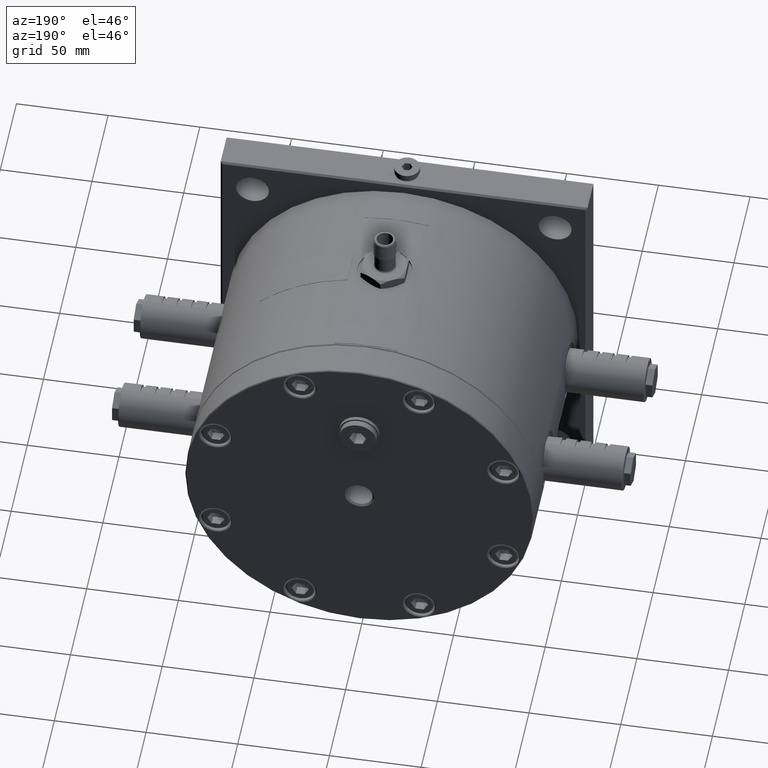
[diagram: clean part render]
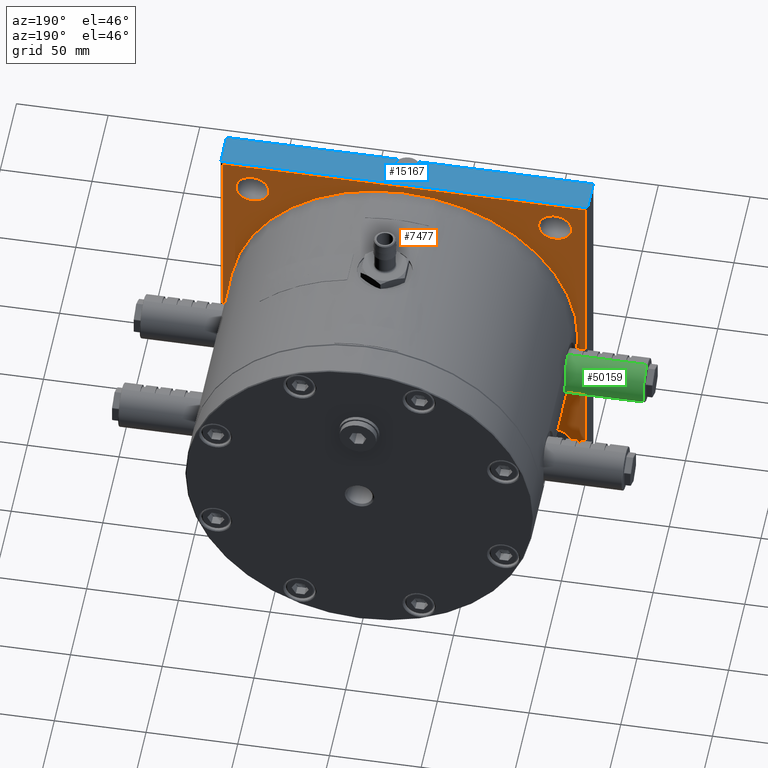
[diagram: same view with three faces highlighted in distinct colors, each labeled with its STEP entity id]
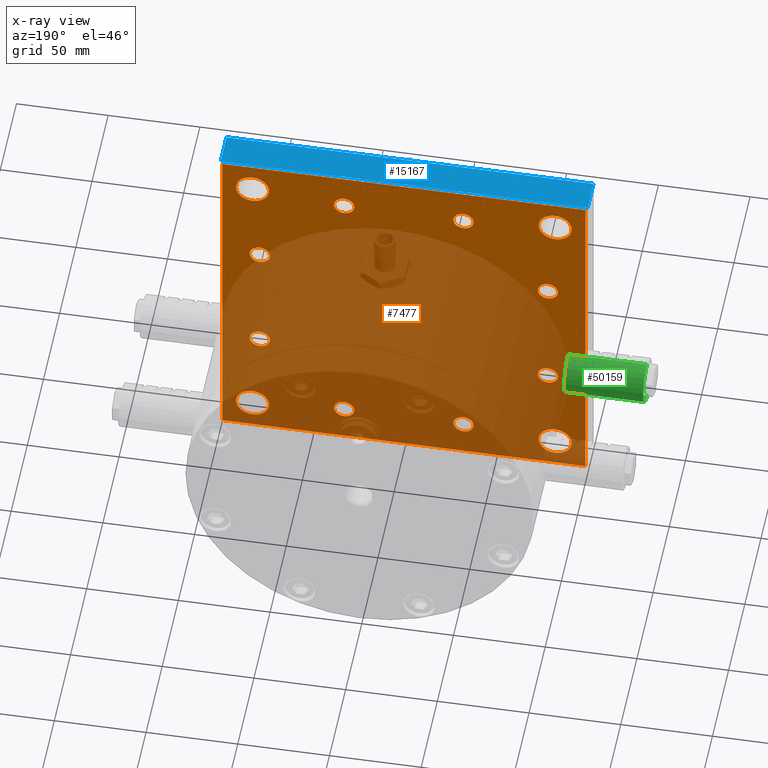
[diagram: x-ray of the same camera — body ghosted, the three highlighted faces saturated]
A machine part, auxiliary view with three faces highlighted in distinct colors.
The next image is the same camera in x-ray (body ghosted, the three faces saturated) — at least one of them is partly hidden behind the body in this view.
Their STEP definitions:

[orange] entity #7477 — the highlighted planar face has unit normal (-0, 1, -0).
#114 = CIRCLE ( 'NONE', #43579, 8.999999999999994700 ) ;
#265 = AXIS2_PLACEMENT_3D ( 'NONE', #19278, #49250, #10029 ) ;
#488 = CARTESIAN_POINT ( 'NONE',  ( 73.50000000000001400, 20.00000000000000000, -82.50000000000000000 ) ) ;
#632 = VERTEX_POINT ( 'NONE', #47244 ) ;
#829 = CARTESIAN_POINT ( 'NONE',  ( -32.52809175103264700, 20.00000000000000000, -78.52976026345940900 ) ) ;
#1204 = CARTESIAN_POINT ( 'NONE',  ( -100.0000000000000000, 20.00000000000000000, -99.00000000000000000 ) ) ;
#1247 = FACE_BOUND ( 'NONE', #44095, .T. ) ;
#1406 = CIRCLE ( 'NONE', #15084, 5.500000000000005300 ) ;
#1595 = CARTESIAN_POINT ( 'NONE',  ( -27.02809175103265100, 20.00000000000000000, -78.52976026345940900 ) ) ;
#2164 = CARTESIAN_POINT ( 'NONE',  ( 78.52976026345940900, 20.00000000000000000, -32.52809175103264700 ) ) ;
#2198 = ORIENTED_EDGE ( 'NONE', *, *, #16822, .F. ) ;
#2204 = CARTESIAN_POINT ( 'NONE',  ( -99.00000000000000000, 20.00000000000000000, -99.00000000000000000 ) ) ;
#2340 = DIRECTION ( 'NONE',  ( 1.000000000000000000, 0.0000000000000000000, 0.0000000000000000000 ) ) ;
#2967 = VERTEX_POINT ( 'NONE', #2204 ) ;
#3101 = EDGE_CURVE ( 'NONE', #57189, #8936, #48048, .T. ) ;
#3197 = CARTESIAN_POINT ( 'NONE',  ( 91.50000000000000000, 20.00000000000000000, 82.50000000000000000 ) ) ;
#3359 = AXIS2_PLACEMENT_3D ( 'NONE', #32865, #61338, #27491 ) ;
#3520 = EDGE_LOOP ( 'NONE', ( #11644, #32626 ) ) ;
#3572 = EDGE_LOOP ( 'NONE', ( #54400, #46644 ) ) ;
#4038 = VERTEX_POINT ( 'NONE', #60260 ) ;
#4098 = AXIS2_PLACEMENT_3D ( 'NONE', #28119, #22821, #8429 ) ;
#4137 = CARTESIAN_POINT ( 'NONE',  ( -73.50000000000001400, 20.00000000000000000, -82.50000000000000000 ) ) ;
#4180 = CARTESIAN_POINT ( 'NONE',  ( -91.50000000000000000, 20.00000000000000000, 82.50000000000000000 ) ) ;
#4371 = ORIENTED_EDGE ( 'NONE', *, *, #36994, .T. ) ;
#4822 = EDGE_CURVE ( 'NONE', #48842, #37252, #22614, .T. ) ;
#4988 = CARTESIAN_POINT ( 'NONE',  ( -84.02976026345942300, 20.00000000000000000, -32.52809175103264700 ) ) ;
#5031 = EDGE_CURVE ( 'NONE', #60851, #51557, #27133, .T. ) ;
#5349 = CARTESIAN_POINT ( 'NONE',  ( 99.00000000000000000, 20.00000000000000000, 99.00000000000000000 ) ) ;
#5498 = CIRCLE ( 'NONE', #3359, 5.499999999999998200 ) ;
#5499 = VERTEX_POINT ( 'NONE', #40472 ) ;
#5853 = FACE_BOUND ( 'NONE', #24971, .T. ) ;
#5949 = EDGE_CURVE ( 'NONE', #6691, #47919, #28315, .T. ) ;
#6382 = EDGE_CURVE ( 'NONE', #40174, #18927, #35957, .T. ) ;
#6598 = DIRECTION ( 'NONE',  ( 2.300880297921579900E-017, -1.000000000000000000, 0.0000000000000000000 ) ) ;
#6655 = EDGE_LOOP ( 'NONE', ( #37626, #31373, #4371, #53468 ) ) ;
#6665 = CARTESIAN_POINT ( 'NONE',  ( -73.02976026345940900, 20.00000000000000000, 32.52809175103264700 ) ) ;
#6691 = VERTEX_POINT ( 'NONE', #54714 ) ;
#6815 = CIRCLE ( 'NONE', #45301, 8.999999999999994700 ) ;
#7176 = DIRECTION ( 'NONE',  ( -2.300880297921579900E-017, 1.000000000000000000, 0.0000000000000000000 ) ) ;
#7252 = VERTEX_POINT ( 'NONE', #3197 ) ;
#7385 = DIRECTION ( 'NONE',  ( 1.000000000000000000, 0.0000000000000000000, 0.0000000000000000000 ) ) ;
#7477 = ADVANCED_FACE ( 'NONE', ( #32786, #1247, #15110, #62655, #41942, #28884, #10515, #18944, #5853, #61091, #56488, #40383, #14335 ), #20504, .T. ) ;
#8026 = CARTESIAN_POINT ( 'NONE',  ( 38.02809175103264700, 20.00000000000000000, -78.52976026345940900 ) ) ;
#8429 = DIRECTION ( 'NONE',  ( 1.000000000000000000, 0.0000000000000000000, 0.0000000000000000000 ) ) ;
#8918 = LINE ( 'NONE', #1204, #31916 ) ;
#8936 = VERTEX_POINT ( 'NONE', #4137 ) ;
#9341 = EDGE_LOOP ( 'NONE', ( #54548, #19965 ) ) ;
#9990 = CARTESIAN_POINT ( 'NONE',  ( 78.52976026345940900, 20.00000000000000000, 32.52809175103264700 ) ) ;
#10029 = DIRECTION ( 'NONE',  ( -1.000000000000000000, 0.0000000000000000000, 0.0000000000000000000 ) ) ;
#10515 = FACE_BOUND ( 'NONE', #3520, .T. ) ;
#10597 = DIRECTION ( 'NONE',  ( 1.491862189340053900E-016, -6.234162491791649300E-017, 1.000000000000000000 ) ) ;
#10619 = CARTESIAN_POINT ( 'NONE',  ( 32.52809175103264700, 20.00000000000000000, 78.52976026345940900 ) ) ;
#10668 = CIRCLE ( 'NONE', #50293, 5.500000000000005300 ) ;
#11249 = DIRECTION ( 'NONE',  ( -1.000000000000000000, 0.0000000000000000000, 0.0000000000000000000 ) ) ;
#11635 = AXIS2_PLACEMENT_3D ( 'NONE', #42705, #52765, #14189 ) ;
#11644 = ORIENTED_EDGE ( 'NONE', *, *, #38740, .T. ) ;
#11827 = DIRECTION ( 'NONE',  ( -1.000000000000000000, 0.0000000000000000000, 0.0000000000000000000 ) ) ;
#12209 = DIRECTION ( 'NONE',  ( -2.300880297921579900E-017, 1.000000000000000000, 0.0000000000000000000 ) ) ;
#12446 = DIRECTION ( 'NONE',  ( -1.000000000000000000, 0.0000000000000000000, 0.0000000000000000000 ) ) ;
#12480 = AXIS2_PLACEMENT_3D ( 'NONE', #10619, #59629, #11249 ) ;
#13002 = CARTESIAN_POINT ( 'NONE',  ( -73.02976026345940900, 20.00000000000000000, -32.52809175103264700 ) ) ;
#13432 = AXIS2_PLACEMENT_3D ( 'NONE', #31827, #36751, #7385 ) ;
#13539 = EDGE_CURVE ( 'NONE', #48749, #25054, #62090, .T. ) ;
#13680 = VERTEX_POINT ( 'NONE', #5349 ) ;
#13786 = VERTEX_POINT ( 'NONE', #31717 ) ;
#13843 = DIRECTION ( 'NONE',  ( -1.000000000000000000, 0.0000000000000000000, 0.0000000000000000000 ) ) ;
#14120 = ORIENTED_EDGE ( 'NONE', *, *, #53530, .T. ) ;
#14189 = DIRECTION ( 'NONE',  ( -1.000000000000000000, 0.0000000000000000000, 0.0000000000000000000 ) ) ;
#14307 = DIRECTION ( 'NONE',  ( -1.491862189340053900E-016, 6.234162491791649300E-017, -1.000000000000000000 ) ) ;
#14335 = FACE_BOUND ( 'NONE', #36896, .T. ) ;
#14619 = AXIS2_PLACEMENT_3D ( 'NONE', #829, #35142, #40074 ) ;
#14794 = CARTESIAN_POINT ( 'NONE',  ( -78.52976026345940900, 20.00000000000000000, 32.52809175103264700 ) ) ;
#14809 = AXIS2_PLACEMENT_3D ( 'NONE', #37996, #27478, #47183 ) ;
#14844 = EDGE_CURVE ( 'NONE', #31773, #50593, #5498, .T. ) ;
#14890 = DIRECTION ( 'NONE',  ( 2.300880297921579900E-017, -1.000000000000000000, 0.0000000000000000000 ) ) ;
#15084 = AXIS2_PLACEMENT_3D ( 'NONE', #9990, #48809, #19239 ) ;
#15110 = FACE_BOUND ( 'NONE', #9341, .T. ) ;
#15711 = CARTESIAN_POINT ( 'NONE',  ( 38.02809175103264700, 20.00000000000000000, 78.52976026345940900 ) ) ;
#16072 = DIRECTION ( 'NONE',  ( 1.000000000000000000, 0.0000000000000000000, 0.0000000000000000000 ) ) ;
#16148 = VERTEX_POINT ( 'NONE', #488 ) ;
#16450 = DIRECTION ( 'NONE',  ( -1.000000000000000000, 0.0000000000000000000, 0.0000000000000000000 ) ) ;
#16660 = EDGE_CURVE ( 'NONE', #4038, #16148, #17597, .T. ) ;
#16738 = ORIENTED_EDGE ( 'NONE', *, *, #55447, .T. ) ;
#16811 = DIRECTION ( 'NONE',  ( -1.000000000000000000, 0.0000000000000000000, 0.0000000000000000000 ) ) ;
#16822 = EDGE_CURVE ( 'NONE', #24571, #45844, #6815, .T. ) ;
#16961 = CARTESIAN_POINT ( 'NONE',  ( 82.50000000000000000, 20.00000000000000000, -82.50000000000000000 ) ) ;
#17128 = VERTEX_POINT ( 'NONE', #53939 ) ;
#17197 = DIRECTION ( 'NONE',  ( 2.300880297921579900E-017, -1.000000000000000000, 0.0000000000000000000 ) ) ;
#17246 = DIRECTION ( 'NONE',  ( 2.300880297921579900E-017, -1.000000000000000000, 0.0000000000000000000 ) ) ;
#17597 = CIRCLE ( 'NONE', #58438, 8.999999999999994700 ) ;
#17662 = CARTESIAN_POINT ( 'NONE',  ( 32.52809175103264700, 20.00000000000000000, 78.52976026345940900 ) ) ;
#18542 = DIRECTION ( 'NONE',  ( -1.000000000000000000, 0.0000000000000000000, 0.0000000000000000000 ) ) ;
#18846 = EDGE_LOOP ( 'NONE', ( #46434, #54956 ) ) ;
#18872 = ORIENTED_EDGE ( 'NONE', *, *, #6382, .T. ) ;
#18927 = VERTEX_POINT ( 'NONE', #35113 ) ;
#18944 = FACE_BOUND ( 'NONE', #26915, .T. ) ;
#19033 = CARTESIAN_POINT ( 'NONE',  ( -73.50000000000001400, 20.00000000000000000, 82.50000000000000000 ) ) ;
#19239 = DIRECTION ( 'NONE',  ( -1.000000000000000000, 0.0000000000000000000, 0.0000000000000000000 ) ) ;
#19278 = CARTESIAN_POINT ( 'NONE',  ( 78.52976026345940900, 20.00000000000000000, 32.52809175103264700 ) ) ;
#19335 = DIRECTION ( 'NONE',  ( 2.300880297921579900E-017, -1.000000000000000000, 0.0000000000000000000 ) ) ;
#19451 = AXIS2_PLACEMENT_3D ( 'NONE', #2164, #17197, #36472 ) ;
#19610 = AXIS2_PLACEMENT_3D ( 'NONE', #17662, #17246, #16811 ) ;
#19842 = DIRECTION ( 'NONE',  ( -1.000000000000000000, 0.0000000000000000000, 0.0000000000000000000 ) ) ;
#19965 = ORIENTED_EDGE ( 'NONE', *, *, #46191, .F. ) ;
#20278 = EDGE_CURVE ( 'NONE', #37252, #48842, #52414, .T. ) ;
#20430 = VECTOR ( 'NONE', #51684, 1000.000000000000000 ) ;
#20504 = PLANE ( 'NONE',  #49108 ) ;
#20515 = DIRECTION ( 'NONE',  ( -1.000000000000000000, -8.946783215029119000E-019, 6.938957921433089400E-017 ) ) ;
#20609 = ORIENTED_EDGE ( 'NONE', *, *, #3101, .F. ) ;
#20742 = ORIENTED_EDGE ( 'NONE', *, *, #23145, .F. ) ;
#21228 = EDGE_LOOP ( 'NONE', ( #61854, #20609 ) ) ;
#21705 = CARTESIAN_POINT ( 'NONE',  ( -32.52809175103264700, 20.00000000000000000, 78.52976026345940900 ) ) ;
#21711 = AXIS2_PLACEMENT_3D ( 'NONE', #31020, #6598, #16450 ) ;
#22614 = CIRCLE ( 'NONE', #61648, 5.499999999999998200 ) ;
#22821 = DIRECTION ( 'NONE',  ( -2.300880297921579900E-017, 1.000000000000000000, 0.0000000000000000000 ) ) ;
#23124 = AXIS2_PLACEMENT_3D ( 'NONE', #55718, #36876, #12446 ) ;
#23145 = EDGE_CURVE ( 'NONE', #16148, #4038, #114, .T. ) ;
#23517 = CARTESIAN_POINT ( 'NONE',  ( -38.02809175103264700, 20.00000000000000000, -78.52976026345940900 ) ) ;
#24213 = VERTEX_POINT ( 'NONE', #59313 ) ;
#24235 = ORIENTED_EDGE ( 'NONE', *, *, #33870, .T. ) ;
#24280 = DIRECTION ( 'NONE',  ( 1.000000000000000000, 0.0000000000000000000, 0.0000000000000000000 ) ) ;
#24571 = VERTEX_POINT ( 'NONE', #19033 ) ;
#24971 = EDGE_LOOP ( 'NONE', ( #14120, #24235 ) ) ;
#25054 = VERTEX_POINT ( 'NONE', #4988 ) ;
#25294 = CARTESIAN_POINT ( 'NONE',  ( 84.02976026345942300, 20.00000000000000000, 32.52809175103264700 ) ) ;
#25752 = CIRCLE ( 'NONE', #56197, 8.999999999999994700 ) ;
#26823 = EDGE_CURVE ( 'NONE', #8936, #57189, #40476, .T. ) ;
#26915 = EDGE_LOOP ( 'NONE', ( #63432, #41345 ) ) ;
#26992 = CIRCLE ( 'NONE', #58363, 5.499999999999998200 ) ;
#27026 = DIRECTION ( 'NONE',  ( -2.300880297921579900E-017, 1.000000000000000000, 0.0000000000000000000 ) ) ;
#27133 = CIRCLE ( 'NONE', #19451, 5.500000000000005300 ) ;
#27238 = DIRECTION ( 'NONE',  ( 1.000000000000000000, 0.0000000000000000000, 0.0000000000000000000 ) ) ;
#27478 = DIRECTION ( 'NONE',  ( 2.300880297921579900E-017, -1.000000000000000000, 0.0000000000000000000 ) ) ;
#27491 = DIRECTION ( 'NONE',  ( -1.000000000000000000, 0.0000000000000000000, 0.0000000000000000000 ) ) ;
#27917 = EDGE_CURVE ( 'NONE', #52364, #13680, #36562, .T. ) ;
#28119 = CARTESIAN_POINT ( 'NONE',  ( -82.50000000000000000, 20.00000000000000000, -82.50000000000000000 ) ) ;
#28315 = CIRCLE ( 'NONE', #12480, 5.499999999999998200 ) ;
#28884 = FACE_BOUND ( 'NONE', #49417, .T. ) ;
#29391 = DIRECTION ( 'NONE',  ( -2.300880297921579900E-017, 1.000000000000000000, 0.0000000000000000000 ) ) ;
#29707 = CARTESIAN_POINT ( 'NONE',  ( 27.02809175103265100, 20.00000000000000000, -78.52976026345940900 ) ) ;
#29939 = CIRCLE ( 'NONE', #265, 5.500000000000005300 ) ;
#30158 = ORIENTED_EDGE ( 'NONE', *, *, #54631, .F. ) ;
#31020 = CARTESIAN_POINT ( 'NONE',  ( 78.52976026345940900, 20.00000000000000000, -32.52809175103264700 ) ) ;
#31373 = ORIENTED_EDGE ( 'NONE', *, *, #27917, .T. ) ;
#31717 = CARTESIAN_POINT ( 'NONE',  ( -27.02809175103265100, 20.00000000000000000, 78.52976026345940900 ) ) ;
#31773 = VERTEX_POINT ( 'NONE', #8026 ) ;
#31827 = CARTESIAN_POINT ( 'NONE',  ( -82.50000000000000000, 20.00000000000000000, 82.50000000000000000 ) ) ;
#31916 = VECTOR ( 'NONE', #20515, 1000.000000000000000 ) ;
#32421 = ORIENTED_EDGE ( 'NONE', *, *, #63590, .T. ) ;
#32581 = EDGE_CURVE ( 'NONE', #47919, #6691, #39933, .T. ) ;
#32626 = ORIENTED_EDGE ( 'NONE', *, *, #59133, .T. ) ;
#32786 = FACE_OUTER_BOUND ( 'NONE', #6655, .T. ) ;
#32865 = CARTESIAN_POINT ( 'NONE',  ( 32.52809175103264700, 20.00000000000000000, -78.52976026345940900 ) ) ;
#33428 = AXIS2_PLACEMENT_3D ( 'NONE', #58728, #29391, #16072 ) ;
#33870 = EDGE_CURVE ( 'NONE', #60543, #5499, #1406, .T. ) ;
#34155 = EDGE_CURVE ( 'NONE', #7252, #17128, #47505, .T. ) ;
#34187 = AXIS2_PLACEMENT_3D ( 'NONE', #44252, #14890, #19842 ) ;
#35075 = DIRECTION ( 'NONE',  ( -8.946783215029080500E-019, 1.000000000000000000, -1.415691547251745500E-038 ) ) ;
#35113 = CARTESIAN_POINT ( 'NONE',  ( -84.02976026345942300, 20.00000000000000000, 32.52809175103264700 ) ) ;
#35142 = DIRECTION ( 'NONE',  ( 2.300880297921579900E-017, -1.000000000000000000, 0.0000000000000000000 ) ) ;
#35514 = CARTESIAN_POINT ( 'NONE',  ( -99.00000000000000000, 20.00000000000000000, 99.00000000000000000 ) ) ;
#35814 = VECTOR ( 'NONE', #14307, 1000.000000000000000 ) ;
#35888 = CIRCLE ( 'NONE', #13432, 8.999999999999994700 ) ;
#35957 = CIRCLE ( 'NONE', #51931, 5.500000000000005300 ) ;
#36209 = CARTESIAN_POINT ( 'NONE',  ( -82.50000000000000000, 20.00000000000000000, 82.50000000000000000 ) ) ;
#36472 = DIRECTION ( 'NONE',  ( -1.000000000000000000, 0.0000000000000000000, 0.0000000000000000000 ) ) ;
#36541 = CARTESIAN_POINT ( 'NONE',  ( 82.50000000000000000, 20.00000000000000000, 82.50000000000000000 ) ) ;
#36562 = LINE ( 'NONE', #37314, #20430 ) ;
#36751 = DIRECTION ( 'NONE',  ( -2.300880297921579900E-017, 1.000000000000000000, 0.0000000000000000000 ) ) ;
#36876 = DIRECTION ( 'NONE',  ( 2.300880297921579900E-017, -1.000000000000000000, 0.0000000000000000000 ) ) ;
#36896 = EDGE_LOOP ( 'NONE', ( #57769, #44665 ) ) ;
#36994 = EDGE_CURVE ( 'NONE', #13680, #24213, #39866, .T. ) ;
#37219 = CARTESIAN_POINT ( 'NONE',  ( -78.52976026345940900, 20.00000000000000000, 32.52809175103264700 ) ) ;
#37252 = VERTEX_POINT ( 'NONE', #1595 ) ;
#37314 = CARTESIAN_POINT ( 'NONE',  ( 100.0000000000000000, 20.00000000000000000, 99.00000000000000000 ) ) ;
#37626 = ORIENTED_EDGE ( 'NONE', *, *, #47310, .T. ) ;
#37996 = CARTESIAN_POINT ( 'NONE',  ( -78.52976026345940900, 20.00000000000000000, -32.52809175103264700 ) ) ;
#38539 = CARTESIAN_POINT ( 'NONE',  ( 99.00000000000000000, 20.00000000000000000, -100.0000000000000000 ) ) ;
#38740 = EDGE_CURVE ( 'NONE', #632, #13786, #41939, .T. ) ;
#38814 = EDGE_LOOP ( 'NONE', ( #48521, #20742 ) ) ;
#38864 = CIRCLE ( 'NONE', #21711, 5.500000000000005300 ) ;
#39244 = EDGE_CURVE ( 'NONE', #24213, #2967, #8918, .T. ) ;
#39866 = LINE ( 'NONE', #38539, #35814 ) ;
#39933 = CIRCLE ( 'NONE', #19610, 5.499999999999998200 ) ;
#40074 = DIRECTION ( 'NONE',  ( -1.000000000000000000, 0.0000000000000000000, 0.0000000000000000000 ) ) ;
#40174 = VERTEX_POINT ( 'NONE', #6665 ) ;
#40383 = FACE_BOUND ( 'NONE', #18846, .T. ) ;
#40472 = CARTESIAN_POINT ( 'NONE',  ( 73.02976026345940900, 20.00000000000000000, 32.52809175103264700 ) ) ;
#40476 = CIRCLE ( 'NONE', #33428, 8.999999999999994700 ) ;
#41345 = ORIENTED_EDGE ( 'NONE', *, *, #32581, .T. ) ;
#41939 = CIRCLE ( 'NONE', #23124, 5.499999999999998200 ) ;
#41942 = FACE_BOUND ( 'NONE', #21228, .T. ) ;
#42705 = CARTESIAN_POINT ( 'NONE',  ( -78.52976026345940900, 20.00000000000000000, -32.52809175103264700 ) ) ;
#43339 = CARTESIAN_POINT ( 'NONE',  ( 82.50000000000000000, 20.00000000000000000, 82.50000000000000000 ) ) ;
#43579 = AXIS2_PLACEMENT_3D ( 'NONE', #16961, #27026, #27238 ) ;
#44095 = EDGE_LOOP ( 'NONE', ( #2198, #30158 ) ) ;
#44252 = CARTESIAN_POINT ( 'NONE',  ( 32.52809175103264700, 20.00000000000000000, -78.52976026345940900 ) ) ;
#44454 = CIRCLE ( 'NONE', #11635, 5.500000000000005300 ) ;
#44665 = ORIENTED_EDGE ( 'NONE', *, *, #13539, .T. ) ;
#45301 = AXIS2_PLACEMENT_3D ( 'NONE', #36209, #12209, #2340 ) ;
#45844 = VERTEX_POINT ( 'NONE', #4180 ) ;
#45848 = CARTESIAN_POINT ( 'NONE',  ( -99.00000000000000000, 20.00000000000000000, 100.0000000000000000 ) ) ;
#46191 = EDGE_CURVE ( 'NONE', #17128, #7252, #25752, .T. ) ;
#46434 = ORIENTED_EDGE ( 'NONE', *, *, #4822, .T. ) ;
#46644 = ORIENTED_EDGE ( 'NONE', *, *, #14844, .T. ) ;
#47183 = DIRECTION ( 'NONE',  ( -1.000000000000000000, 0.0000000000000000000, 0.0000000000000000000 ) ) ;
#47244 = CARTESIAN_POINT ( 'NONE',  ( -38.02809175103264700, 20.00000000000000000, 78.52976026345940900 ) ) ;
#47310 = EDGE_CURVE ( 'NONE', #2967, #52364, #50913, .T. ) ;
#47505 = CIRCLE ( 'NONE', #54494, 8.999999999999994700 ) ;
#47892 = DIRECTION ( 'NONE',  ( 2.300880297921579900E-017, -1.000000000000000000, 0.0000000000000000000 ) ) ;
#47919 = VERTEX_POINT ( 'NONE', #15711 ) ;
#48048 = CIRCLE ( 'NONE', #4098, 8.999999999999994700 ) ;
#48521 = ORIENTED_EDGE ( 'NONE', *, *, #16660, .F. ) ;
#48749 = VERTEX_POINT ( 'NONE', #13002 ) ;
#48809 = DIRECTION ( 'NONE',  ( 2.300880297921579900E-017, -1.000000000000000000, 0.0000000000000000000 ) ) ;
#48842 = VERTEX_POINT ( 'NONE', #23517 ) ;
#48886 = EDGE_CURVE ( 'NONE', #50593, #31773, #58386, .T. ) ;
#49108 = AXIS2_PLACEMENT_3D ( 'NONE', #54352, #35075, #49660 ) ;
#49112 = DIRECTION ( 'NONE',  ( -1.000000000000000000, 0.0000000000000000000, 0.0000000000000000000 ) ) ;
#49250 = DIRECTION ( 'NONE',  ( 2.300880297921579900E-017, -1.000000000000000000, 0.0000000000000000000 ) ) ;
#49417 = EDGE_LOOP ( 'NONE', ( #32421, #18872 ) ) ;
#49660 = DIRECTION ( 'NONE',  ( 1.000000000000000000, 8.946783215029080500E-019, -6.401752586476379100E-022 ) ) ;
#50293 = AXIS2_PLACEMENT_3D ( 'NONE', #14794, #19335, #49112 ) ;
#50593 = VERTEX_POINT ( 'NONE', #29707 ) ;
#50913 = LINE ( 'NONE', #45848, #54690 ) ;
#51557 = VERTEX_POINT ( 'NONE', #57242 ) ;
#51684 = DIRECTION ( 'NONE',  ( 1.000000000000000000, 8.946783215029119000E-019, -6.938957921433089400E-017 ) ) ;
#51931 = AXIS2_PLACEMENT_3D ( 'NONE', #37219, #61849, #13843 ) ;
#52364 = VERTEX_POINT ( 'NONE', #35514 ) ;
#52414 = CIRCLE ( 'NONE', #14619, 5.499999999999998200 ) ;
#52478 = CARTESIAN_POINT ( 'NONE',  ( 73.02976026345940900, 20.00000000000000000, -32.52809175103264700 ) ) ;
#52559 = DIRECTION ( 'NONE',  ( -2.300880297921579900E-017, 1.000000000000000000, 0.0000000000000000000 ) ) ;
#52765 = DIRECTION ( 'NONE',  ( 2.300880297921579900E-017, -1.000000000000000000, 0.0000000000000000000 ) ) ;
#53468 = ORIENTED_EDGE ( 'NONE', *, *, #39244, .T. ) ;
#53530 = EDGE_CURVE ( 'NONE', #5499, #60543, #29939, .T. ) ;
#53605 = CARTESIAN_POINT ( 'NONE',  ( 82.50000000000000000, 20.00000000000000000, -82.50000000000000000 ) ) ;
#53939 = CARTESIAN_POINT ( 'NONE',  ( 73.50000000000001400, 20.00000000000000000, 82.50000000000000000 ) ) ;
#54212 = DIRECTION ( 'NONE',  ( -2.300880297921579900E-017, 1.000000000000000000, 0.0000000000000000000 ) ) ;
#54352 = CARTESIAN_POINT ( 'NONE',  ( 100.0000000000000000, 20.00000000000000000, 100.0000000000000000 ) ) ;
#54400 = ORIENTED_EDGE ( 'NONE', *, *, #48886, .T. ) ;
#54494 = AXIS2_PLACEMENT_3D ( 'NONE', #36541, #7176, #55016 ) ;
#54548 = ORIENTED_EDGE ( 'NONE', *, *, #34155, .F. ) ;
#54631 = EDGE_CURVE ( 'NONE', #45844, #24571, #35888, .T. ) ;
#54690 = VECTOR ( 'NONE', #10597, 1000.000000000000000 ) ;
#54714 = CARTESIAN_POINT ( 'NONE',  ( 27.02809175103265100, 20.00000000000000000, 78.52976026345940900 ) ) ;
#54850 = CARTESIAN_POINT ( 'NONE',  ( -91.50000000000000000, 20.00000000000000000, -82.50000000000000000 ) ) ;
#54956 = ORIENTED_EDGE ( 'NONE', *, *, #20278, .T. ) ;
#55016 = DIRECTION ( 'NONE',  ( 1.000000000000000000, 0.0000000000000000000, 0.0000000000000000000 ) ) ;
#55447 = EDGE_CURVE ( 'NONE', #51557, #60851, #38864, .T. ) ;
#55718 = CARTESIAN_POINT ( 'NONE',  ( -32.52809175103264700, 20.00000000000000000, 78.52976026345940900 ) ) ;
#55949 = DIRECTION ( 'NONE',  ( 2.300880297921579900E-017, -1.000000000000000000, 0.0000000000000000000 ) ) ;
#56197 = AXIS2_PLACEMENT_3D ( 'NONE', #43339, #52559, #62619 ) ;
#56488 = FACE_BOUND ( 'NONE', #3572, .T. ) ;
#57189 = VERTEX_POINT ( 'NONE', #54850 ) ;
#57242 = CARTESIAN_POINT ( 'NONE',  ( 84.02976026345942300, 20.00000000000000000, -32.52809175103264700 ) ) ;
#57769 = ORIENTED_EDGE ( 'NONE', *, *, #61798, .T. ) ;
#58363 = AXIS2_PLACEMENT_3D ( 'NONE', #21705, #55949, #11827 ) ;
#58386 = CIRCLE ( 'NONE', #34187, 5.499999999999998200 ) ;
#58438 = AXIS2_PLACEMENT_3D ( 'NONE', #53605, #54212, #24280 ) ;
#58728 = CARTESIAN_POINT ( 'NONE',  ( -82.50000000000000000, 20.00000000000000000, -82.50000000000000000 ) ) ;
#59133 = EDGE_CURVE ( 'NONE', #13786, #632, #26992, .T. ) ;
#59313 = CARTESIAN_POINT ( 'NONE',  ( 99.00000000000000000, 20.00000000000000000, -99.00000000000000000 ) ) ;
#59629 = DIRECTION ( 'NONE',  ( 2.300880297921579900E-017, -1.000000000000000000, 0.0000000000000000000 ) ) ;
#59970 = ORIENTED_EDGE ( 'NONE', *, *, #5031, .T. ) ;
#60260 = CARTESIAN_POINT ( 'NONE',  ( 91.50000000000000000, 20.00000000000000000, -82.50000000000000000 ) ) ;
#60543 = VERTEX_POINT ( 'NONE', #25294 ) ;
#60851 = VERTEX_POINT ( 'NONE', #52478 ) ;
#61091 = FACE_BOUND ( 'NONE', #62554, .T. ) ;
#61338 = DIRECTION ( 'NONE',  ( 2.300880297921579900E-017, -1.000000000000000000, 0.0000000000000000000 ) ) ;
#61648 = AXIS2_PLACEMENT_3D ( 'NONE', #62446, #47892, #18542 ) ;
#61798 = EDGE_CURVE ( 'NONE', #25054, #48749, #44454, .T. ) ;
#61849 = DIRECTION ( 'NONE',  ( 2.300880297921579900E-017, -1.000000000000000000, 0.0000000000000000000 ) ) ;
#61854 = ORIENTED_EDGE ( 'NONE', *, *, #26823, .F. ) ;
#62090 = CIRCLE ( 'NONE', #14809, 5.500000000000005300 ) ;
#62446 = CARTESIAN_POINT ( 'NONE',  ( -32.52809175103264700, 20.00000000000000000, -78.52976026345940900 ) ) ;
#62554 = EDGE_LOOP ( 'NONE', ( #59970, #16738 ) ) ;
#62619 = DIRECTION ( 'NONE',  ( 1.000000000000000000, 0.0000000000000000000, 0.0000000000000000000 ) ) ;
#62655 = FACE_BOUND ( 'NONE', #38814, .T. ) ;
#63432 = ORIENTED_EDGE ( 'NONE', *, *, #5949, .T. ) ;
#63590 = EDGE_CURVE ( 'NONE', #18927, #40174, #10668, .T. ) ;

[blue] entity #15167 — the highlighted planar face has unit normal (-0, 0, -1).
#30 = DIRECTION ( 'NONE',  ( 7.979727989493308900E-017, -6.234162491791649300E-017, 1.000000000000000000 ) ) ;
#3153 = LINE ( 'NONE', #4496, #32316 ) ;
#3928 = FACE_BOUND ( 'NONE', #29962, .T. ) ;
#4070 = DIRECTION ( 'NONE',  ( -1.000000000000000000, -8.946783215029119000E-019, 6.938957921433089400E-017 ) ) ;
#4356 = ORIENTED_EDGE ( 'NONE', *, *, #28002, .T. ) ;
#4496 = CARTESIAN_POINT ( 'NONE',  ( -100.0000000000000000, 20.00000000000000000, 100.0000000000000000 ) ) ;
#4642 = CARTESIAN_POINT ( 'NONE',  ( 100.0000000000000000, 1.000000000000000000, 100.0000000000000000 ) ) ;
#7964 = ORIENTED_EDGE ( 'NONE', *, *, #48574, .F. ) ;
#8759 = VERTEX_POINT ( 'NONE', #62643 ) ;
#9645 = DIRECTION ( 'NONE',  ( 2.300880297921579900E-017, -1.000000000000000000, 0.0000000000000000000 ) ) ;
#9701 = DIRECTION ( 'NONE',  ( 1.000000000000000000, 0.0000000000000000000, 0.0000000000000000000 ) ) ;
#10500 = VECTOR ( 'NONE', #11629, 1000.000000000000000 ) ;
#11090 = DIRECTION ( 'NONE',  ( -6.938957921433089400E-017, 6.234162491791649300E-017, -1.000000000000000000 ) ) ;
#11527 = CARTESIAN_POINT ( 'NONE',  ( 7.749639959701149800E-015, 10.00000000000000000, 100.0000000000000000 ) ) ;
#11629 = DIRECTION ( 'NONE',  ( 2.300880297921579900E-017, -1.000000000000000000, 0.0000000000000000000 ) ) ;
#12366 = DIRECTION ( 'NONE',  ( 1.000000000000000000, 8.946783215029119000E-019, -6.938957921433089400E-017 ) ) ;
#12907 = CARTESIAN_POINT ( 'NONE',  ( 4.283000000000008400, 10.00000000000000000, 100.0000000000000000 ) ) ;
#13100 = ORIENTED_EDGE ( 'NONE', *, *, #40903, .F. ) ;
#15167 = ADVANCED_FACE ( 'NONE', ( #3928, #16222 ), #49878, .F. ) ;
#16222 = FACE_OUTER_BOUND ( 'NONE', #49601, .T. ) ;
#18945 = ORIENTED_EDGE ( 'NONE', *, *, #32032, .T. ) ;
#19616 = LINE ( 'NONE', #51583, #54081 ) ;
#19778 = CARTESIAN_POINT ( 'NONE',  ( 7.749639959701149800E-015, 10.00000000000000000, 100.0000000000000000 ) ) ;
#23825 = ORIENTED_EDGE ( 'NONE', *, *, #39377, .T. ) ;
#25441 = VERTEX_POINT ( 'NONE', #4642 ) ;
#25668 = DIRECTION ( 'NONE',  ( -1.000000000000000000, -8.946783215029119000E-019, 6.938957921433089400E-017 ) ) ;
#27034 = CARTESIAN_POINT ( 'NONE',  ( -100.0000000000000000, 19.00000000000000000, 100.0000000000000000 ) ) ;
#28002 = EDGE_CURVE ( 'NONE', #63420, #8759, #52618, .T. ) ;
#29452 = VERTEX_POINT ( 'NONE', #40057 ) ;
#29962 = EDGE_LOOP ( 'NONE', ( #7964, #13100 ) ) ;
#30395 = LINE ( 'NONE', #55092, #10500 ) ;
#30857 = AXIS2_PLACEMENT_3D ( 'NONE', #60107, #11090, #25668 ) ;
#31111 = ORIENTED_EDGE ( 'NONE', *, *, #36293, .F. ) ;
#31229 = DIRECTION ( 'NONE',  ( 1.000000000000000000, 0.0000000000000000000, 0.0000000000000000000 ) ) ;
#32032 = EDGE_CURVE ( 'NONE', #8759, #42591, #3153, .T. ) ;
#32201 = CARTESIAN_POINT ( 'NONE',  ( 100.0000000000000000, 19.00000000000000000, 100.0000000000000000 ) ) ;
#32316 = VECTOR ( 'NONE', #9645, 1000.000000000000000 ) ;
#36293 = EDGE_CURVE ( 'NONE', #63420, #25441, #30395, .T. ) ;
#38059 = VECTOR ( 'NONE', #4070, 1000.000000000000000 ) ;
#39377 = EDGE_CURVE ( 'NONE', #42591, #25441, #19616, .T. ) ;
#39986 = AXIS2_PLACEMENT_3D ( 'NONE', #19778, #30, #9701 ) ;
#40057 = CARTESIAN_POINT ( 'NONE',  ( -4.282999999999992400, 10.00000000000000000, 100.0000000000000000 ) ) ;
#40903 = EDGE_CURVE ( 'NONE', #29452, #51551, #47846, .T. ) ;
#41922 = CARTESIAN_POINT ( 'NONE',  ( -100.0000000000000000, 1.000000000000000000, 100.0000000000000000 ) ) ;
#42591 = VERTEX_POINT ( 'NONE', #41922 ) ;
#47846 = CIRCLE ( 'NONE', #39986, 4.283000000000000400 ) ;
#48574 = EDGE_CURVE ( 'NONE', #51551, #29452, #49977, .T. ) ;
#49601 = EDGE_LOOP ( 'NONE', ( #18945, #23825, #31111, #4356 ) ) ;
#49878 = PLANE ( 'NONE',  #30857 ) ;
#49977 = CIRCLE ( 'NONE', #61654, 4.283000000000000400 ) ;
#50744 = DIRECTION ( 'NONE',  ( 7.979727989493308900E-017, -6.234162491791649300E-017, 1.000000000000000000 ) ) ;
#51551 = VERTEX_POINT ( 'NONE', #12907 ) ;
#51583 = CARTESIAN_POINT ( 'NONE',  ( -100.0000000000000000, 1.000000000000000000, 100.0000000000000000 ) ) ;
#52618 = LINE ( 'NONE', #27034, #38059 ) ;
#54081 = VECTOR ( 'NONE', #12366, 1000.000000000000000 ) ;
#55092 = CARTESIAN_POINT ( 'NONE',  ( 100.0000000000000000, 20.00000000000000000, 100.0000000000000000 ) ) ;
#60107 = CARTESIAN_POINT ( 'NONE',  ( -100.0000000000000000, 20.00000000000000000, 100.0000000000000000 ) ) ;
#61654 = AXIS2_PLACEMENT_3D ( 'NONE', #11527, #50744, #31229 ) ;
#62643 = CARTESIAN_POINT ( 'NONE',  ( -100.0000000000000000, 19.00000000000000000, 100.0000000000000000 ) ) ;
#63420 = VERTEX_POINT ( 'NONE', #32201 ) ;

[green] entity #50159 — the highlighted cylindrical surface (edge-blend (fillet) strip) has radius 12 mm, axis along (1, 0, 0).
#254 = CARTESIAN_POINT ( 'NONE',  ( -103.5000000000000000, 45.00000000000000000, -12.00000000000000000 ) ) ;
#324 = VECTOR ( 'NONE', #19293, 1000.000000000000000 ) ;
#789 = CARTESIAN_POINT ( 'NONE',  ( -117.5000000000000000, 45.00000000000000000, 12.00000000000000000 ) ) ;
#1103 = VERTEX_POINT ( 'NONE', #42464 ) ;
#1515 = CIRCLE ( 'NONE', #41977, 12.00000000000000000 ) ;
#1841 = VERTEX_POINT ( 'NONE', #59862 ) ;
#2304 = EDGE_CURVE ( 'NONE', #25012, #61463, #22117, .T. ) ;
#2394 = VERTEX_POINT ( 'NONE', #254 ) ;
#2507 = LINE ( 'NONE', #50471, #30851 ) ;
#2564 = ORIENTED_EDGE ( 'NONE', *, *, #41070, .T. ) ;
#3949 = CARTESIAN_POINT ( 'NONE',  ( -127.5000000000000000, 45.00000000000000000, -12.00000000000000000 ) ) ;
#4017 = DIRECTION ( 'NONE',  ( 0.0000000000000000000, 0.0000000000000000000, -1.000000000000000000 ) ) ;
#4102 = DIRECTION ( 'NONE',  ( 1.000000000000000000, 9.784048416010930000E-016, 2.775557561562889800E-017 ) ) ;
#4773 = CARTESIAN_POINT ( 'NONE',  ( -137.0000000000000000, 45.00000000000002100, -12.00000000000000400 ) ) ;
#5635 = CARTESIAN_POINT ( 'NONE',  ( -119.5000000000000000, 45.00000000000000000, -12.00000000000000000 ) ) ;
#5725 = EDGE_CURVE ( 'NONE', #15248, #43950, #25534, .T. ) ;
#6059 = DIRECTION ( 'NONE',  ( 1.000000000000000000, 9.784048416010930000E-016, 2.775557561562889800E-017 ) ) ;
#6286 = CARTESIAN_POINT ( 'NONE',  ( -137.5000000000000000, 45.00000000000000000, 11.99999999999999800 ) ) ;
#6649 = CARTESIAN_POINT ( 'NONE',  ( -137.5000000000000000, 45.00000000000000000, 12.00000000000000000 ) ) ;
#7500 = CARTESIAN_POINT ( 'NONE',  ( -117.5000000000000000, 45.00000000000000000, -12.00000000000000000 ) ) ;
#7705 = LINE ( 'NONE', #36743, #23842 ) ;
#7842 = VERTEX_POINT ( 'NONE', #43831 ) ;
#8853 = LINE ( 'NONE', #46206, #54078 ) ;
#9055 = VECTOR ( 'NONE', #34372, 1000.000000000000000 ) ;
#10052 = EDGE_CURVE ( 'NONE', #29929, #17685, #42379, .T. ) ;
#10507 = CARTESIAN_POINT ( 'NONE',  ( -137.5000000000000000, 45.00000000000000000, -1.221245327087672000E-015 ) ) ;
#11381 = VERTEX_POINT ( 'NONE', #23619 ) ;
#13714 = DIRECTION ( 'NONE',  ( 0.0000000000000000000, 0.0000000000000000000, 1.000000000000000000 ) ) ;
#14457 = VECTOR ( 'NONE', #43695, 1000.000000000000000 ) ;
#15248 = VERTEX_POINT ( 'NONE', #7500 ) ;
#15414 = CARTESIAN_POINT ( 'NONE',  ( -137.5000000000000000, 45.00000000000000000, 12.00000000000000000 ) ) ;
#15902 = EDGE_CURVE ( 'NONE', #1841, #47088, #46029, .T. ) ;
#15914 = ORIENTED_EDGE ( 'NONE', *, *, #50117, .T. ) ;
#16085 = LINE ( 'NONE', #27242, #19193 ) ;
#16852 = VECTOR ( 'NONE', #4102, 1000.000000000000000 ) ;
#16946 = DIRECTION ( 'NONE',  ( -1.000000000000000000, -9.784048416010930000E-016, -2.775557561562889800E-017 ) ) ;
#17014 = ORIENTED_EDGE ( 'NONE', *, *, #56433, .F. ) ;
#17018 = EDGE_CURVE ( 'NONE', #47979, #15248, #48221, .T. ) ;
#17113 = EDGE_CURVE ( 'NONE', #62910, #1841, #58871, .T. ) ;
#17443 = ORIENTED_EDGE ( 'NONE', *, *, #24566, .T. ) ;
#17585 = ORIENTED_EDGE ( 'NONE', *, *, #46682, .F. ) ;
#17685 = VERTEX_POINT ( 'NONE', #37054 ) ;
#18453 = FACE_OUTER_BOUND ( 'NONE', #25507, .T. ) ;
#18559 = DIRECTION ( 'NONE',  ( 0.0000000000000000000, 0.0000000000000000000, -1.000000000000000000 ) ) ;
#19052 = VECTOR ( 'NONE', #16946, 1000.000000000000000 ) ;
#19193 = VECTOR ( 'NONE', #56802, 1000.000000000000000 ) ;
#19293 = DIRECTION ( 'NONE',  ( -1.000000000000000000, -9.784048416010930000E-016, -2.775557561562889800E-017 ) ) ;
#20679 = CARTESIAN_POINT ( 'NONE',  ( -137.0000000000000000, 45.00000000000002100, 11.99999999999999800 ) ) ;
#20901 = VECTOR ( 'NONE', #6059, 1000.000000000000000 ) ;
#21226 = CARTESIAN_POINT ( 'NONE',  ( -111.5000000000000000, 45.00000000000000000, -12.00000000000000000 ) ) ;
#21315 = EDGE_CURVE ( 'NONE', #51117, #2394, #42503, .T. ) ;
#21927 = VERTEX_POINT ( 'NONE', #25749 ) ;
#22117 = LINE ( 'NONE', #49765, #9055 ) ;
#22427 = EDGE_CURVE ( 'NONE', #25971, #23606, #28588, .T. ) ;
#23606 = VERTEX_POINT ( 'NONE', #50901 ) ;
#23619 = CARTESIAN_POINT ( 'NONE',  ( -119.5000000000000000, 45.00000000000000000, 12.00000000000000000 ) ) ;
#23811 = CYLINDRICAL_SURFACE ( 'NONE', #40349, 12.00000000000000000 ) ;
#23842 = VECTOR ( 'NONE', #41682, 1000.000000000000000 ) ;
#23928 = DIRECTION ( 'NONE',  ( -1.000000000000000000, -9.784048416010930000E-016, -2.775557561562889800E-017 ) ) ;
#24268 = ORIENTED_EDGE ( 'NONE', *, *, #58671, .F. ) ;
#24377 = ORIENTED_EDGE ( 'NONE', *, *, #61960, .F. ) ;
#24566 = EDGE_CURVE ( 'NONE', #25012, #29929, #1515, .T. ) ;
#24776 = AXIS2_PLACEMENT_3D ( 'NONE', #27972, #23928, #18559 ) ;
#24869 = DIRECTION ( 'NONE',  ( -1.000000000000000000, -9.784048416010930000E-016, -2.775557561562889800E-017 ) ) ;
#25012 = VERTEX_POINT ( 'NONE', #4773 ) ;
#25167 = ORIENTED_EDGE ( 'NONE', *, *, #15902, .T. ) ;
#25507 = EDGE_LOOP ( 'NONE', ( #62120, #17443, #50822, #32156, #47586, #60702, #47933, #17585, #38582, #2564, #41377, #25167, #24377, #15914, #57126, #17014, #58769, #48976, #24268, #28494 ) ) ;
#25534 = LINE ( 'NONE', #62727, #57723 ) ;
#25749 = CARTESIAN_POINT ( 'NONE',  ( -103.5000000000000000, 45.00000000000000000, 12.00000000000000000 ) ) ;
#25971 = VERTEX_POINT ( 'NONE', #789 ) ;
#26254 = DIRECTION ( 'NONE',  ( 1.000000000000000000, 9.784048416010930000E-016, 2.775557561562889800E-017 ) ) ;
#27242 = CARTESIAN_POINT ( 'NONE',  ( -137.5000000000000000, 45.00000000000000000, -12.00000000000000000 ) ) ;
#27972 = CARTESIAN_POINT ( 'NONE',  ( -94.00000000000000000, 45.00000000000000000, -1.387778780781446300E-017 ) ) ;
#28494 = ORIENTED_EDGE ( 'NONE', *, *, #56799, .F. ) ;
#28588 = LINE ( 'NONE', #60791, #37044 ) ;
#28833 = CARTESIAN_POINT ( 'NONE',  ( -94.00000000000000000, 45.00000000000002100, -12.00000000000000000 ) ) ;
#29383 = DIRECTION ( 'NONE',  ( 1.000000000000000000, 9.784048416010930000E-016, 2.775557561562889800E-017 ) ) ;
#29499 = VECTOR ( 'NONE', #41236, 1000.000000000000000 ) ;
#29929 = VERTEX_POINT ( 'NONE', #20679 ) ;
#29961 = CARTESIAN_POINT ( 'NONE',  ( -137.5000000000000000, 45.00000000000000000, 12.00000000000000000 ) ) ;
#30679 = VERTEX_POINT ( 'NONE', #58102 ) ;
#30851 = VECTOR ( 'NONE', #26254, 1000.000000000000000 ) ;
#32084 = DIRECTION ( 'NONE',  ( 1.000000000000000000, 9.784048416010930000E-016, 2.775557561562889800E-017 ) ) ;
#32156 = ORIENTED_EDGE ( 'NONE', *, *, #34773, .F. ) ;
#32542 = EDGE_CURVE ( 'NONE', #54103, #11381, #7705, .T. ) ;
#32933 = LINE ( 'NONE', #15414, #35987 ) ;
#33340 = EDGE_CURVE ( 'NONE', #25971, #11381, #32933, .T. ) ;
#33637 = DIRECTION ( 'NONE',  ( 1.000000000000000000, 9.784048416010930000E-016, 2.775557561562889800E-017 ) ) ;
#34250 = CARTESIAN_POINT ( 'NONE',  ( -137.0000000000000000, 45.00000000000000000, -1.207367539279858100E-015 ) ) ;
#34287 = LINE ( 'NONE', #38847, #38893 ) ;
#34372 = DIRECTION ( 'NONE',  ( 1.000000000000000000, 9.784048416010930000E-016, 2.775557561562889800E-017 ) ) ;
#34446 = CARTESIAN_POINT ( 'NONE',  ( -101.5000000000000000, 45.00000000000000000, 12.00000000000000000 ) ) ;
#34773 = EDGE_CURVE ( 'NONE', #54103, #17685, #59619, .T. ) ;
#35161 = VECTOR ( 'NONE', #33637, 1000.000000000000000 ) ;
#35987 = VECTOR ( 'NONE', #24869, 1000.000000000000000 ) ;
#36628 = DIRECTION ( 'NONE',  ( 1.000000000000000000, 9.784048416010930000E-016, 2.775557561562889800E-017 ) ) ;
#36743 = CARTESIAN_POINT ( 'NONE',  ( -137.5000000000000000, 45.00000000000000000, 11.99999999999999800 ) ) ;
#37044 = VECTOR ( 'NONE', #61006, 1000.000000000000000 ) ;
#37054 = CARTESIAN_POINT ( 'NONE',  ( -127.5000000000000000, 45.00000000000000000, 12.00000000000000000 ) ) ;
#37093 = LINE ( 'NONE', #61016, #41706 ) ;
#37894 = DIRECTION ( 'NONE',  ( 1.000000000000000000, 9.784048416010930000E-016, 2.775557561562889800E-017 ) ) ;
#38435 = CARTESIAN_POINT ( 'NONE',  ( -137.5000000000000000, 45.00000000000000000, -12.00000000000000200 ) ) ;
#38582 = ORIENTED_EDGE ( 'NONE', *, *, #53070, .T. ) ;
#38847 = CARTESIAN_POINT ( 'NONE',  ( -137.5000000000000000, 45.00000000000000000, 11.99999999999999800 ) ) ;
#38893 = VECTOR ( 'NONE', #29383, 1000.000000000000000 ) ;
#39463 = LINE ( 'NONE', #51089, #29499 ) ;
#40349 = AXIS2_PLACEMENT_3D ( 'NONE', #10507, #49509, #13714 ) ;
#41070 = EDGE_CURVE ( 'NONE', #21927, #62910, #37093, .T. ) ;
#41236 = DIRECTION ( 'NONE',  ( 1.000000000000000000, 9.784048416010930000E-016, 2.775557561562889800E-017 ) ) ;
#41377 = ORIENTED_EDGE ( 'NONE', *, *, #17113, .T. ) ;
#41682 = DIRECTION ( 'NONE',  ( 1.000000000000000000, 9.784048416010930000E-016, 2.775557561562889800E-017 ) ) ;
#41706 = VECTOR ( 'NONE', #36628, 1000.000000000000000 ) ;
#41977 = AXIS2_PLACEMENT_3D ( 'NONE', #34250, #47963, #4017 ) ;
#42144 = LINE ( 'NONE', #57442, #16852 ) ;
#42379 = LINE ( 'NONE', #6286, #20901 ) ;
#42464 = CARTESIAN_POINT ( 'NONE',  ( -101.5000000000000000, 45.00000000000000000, -12.00000000000000000 ) ) ;
#42503 = LINE ( 'NONE', #38435, #57054 ) ;
#43287 = LINE ( 'NONE', #29961, #324 ) ;
#43695 = DIRECTION ( 'NONE',  ( 1.000000000000000000, 9.784048416010930000E-016, 2.775557561562889800E-017 ) ) ;
#43831 = CARTESIAN_POINT ( 'NONE',  ( -109.5000000000000000, 45.00000000000000000, 12.00000000000000000 ) ) ;
#43904 = CARTESIAN_POINT ( 'NONE',  ( -137.5000000000000000, 45.00000000000000000, 11.99999999999999800 ) ) ;
#43950 = VERTEX_POINT ( 'NONE', #21226 ) ;
#46029 = CIRCLE ( 'NONE', #24776, 12.00000000000000000 ) ;
#46206 = CARTESIAN_POINT ( 'NONE',  ( -137.5000000000000000, 45.00000000000000000, -12.00000000000000000 ) ) ;
#46682 = EDGE_CURVE ( 'NONE', #7842, #23606, #43287, .T. ) ;
#47088 = VERTEX_POINT ( 'NONE', #28833 ) ;
#47586 = ORIENTED_EDGE ( 'NONE', *, *, #32542, .T. ) ;
#47933 = ORIENTED_EDGE ( 'NONE', *, *, #22427, .T. ) ;
#47963 = DIRECTION ( 'NONE',  ( 1.000000000000000000, 9.784048416010930000E-016, 2.775557561562889800E-017 ) ) ;
#47979 = VERTEX_POINT ( 'NONE', #5635 ) ;
#48221 = LINE ( 'NONE', #52491, #35161 ) ;
#48976 = ORIENTED_EDGE ( 'NONE', *, *, #17018, .F. ) ;
#49509 = DIRECTION ( 'NONE',  ( 1.000000000000000000, 9.784048416010930000E-016, 2.775557561562889800E-017 ) ) ;
#49765 = CARTESIAN_POINT ( 'NONE',  ( -137.5000000000000000, 45.00000000000000000, -12.00000000000000200 ) ) ;
#50117 = EDGE_CURVE ( 'NONE', #1103, #2394, #16085, .T. ) ;
#50159 = ADVANCED_FACE ( 'NONE', ( #18453 ), #23811, .T. ) ;
#50471 = CARTESIAN_POINT ( 'NONE',  ( -137.5000000000000000, 45.00000000000000000, -12.00000000000000200 ) ) ;
#50822 = ORIENTED_EDGE ( 'NONE', *, *, #10052, .T. ) ;
#50901 = CARTESIAN_POINT ( 'NONE',  ( -111.5000000000000000, 45.00000000000000000, 12.00000000000000000 ) ) ;
#50983 = CARTESIAN_POINT ( 'NONE',  ( -125.5000000000000000, 45.00000000000000000, 12.00000000000000000 ) ) ;
#51089 = CARTESIAN_POINT ( 'NONE',  ( -137.5000000000000000, 45.00000000000000000, -12.00000000000000000 ) ) ;
#51117 = VERTEX_POINT ( 'NONE', #59574 ) ;
#52491 = CARTESIAN_POINT ( 'NONE',  ( -137.5000000000000000, 45.00000000000000000, -12.00000000000000000 ) ) ;
#53070 = EDGE_CURVE ( 'NONE', #7842, #21927, #34287, .T. ) ;
#53202 = DIRECTION ( 'NONE',  ( 1.000000000000000000, 9.784048416010930000E-016, 2.775557561562889800E-017 ) ) ;
#54078 = VECTOR ( 'NONE', #32084, 1000.000000000000000 ) ;
#54103 = VERTEX_POINT ( 'NONE', #50983 ) ;
#56433 = EDGE_CURVE ( 'NONE', #43950, #51117, #8853, .T. ) ;
#56799 = EDGE_CURVE ( 'NONE', #61463, #30679, #39463, .T. ) ;
#56802 = DIRECTION ( 'NONE',  ( -1.000000000000000000, -9.784048416010930000E-016, -2.775557561562889800E-017 ) ) ;
#57054 = VECTOR ( 'NONE', #53202, 1000.000000000000000 ) ;
#57126 = ORIENTED_EDGE ( 'NONE', *, *, #21315, .F. ) ;
#57442 = CARTESIAN_POINT ( 'NONE',  ( -137.5000000000000000, 45.00000000000000000, -12.00000000000000200 ) ) ;
#57723 = VECTOR ( 'NONE', #37894, 1000.000000000000000 ) ;
#58102 = CARTESIAN_POINT ( 'NONE',  ( -125.5000000000000000, 45.00000000000000000, -12.00000000000000000 ) ) ;
#58671 = EDGE_CURVE ( 'NONE', #30679, #47979, #2507, .T. ) ;
#58769 = ORIENTED_EDGE ( 'NONE', *, *, #5725, .F. ) ;
#58871 = LINE ( 'NONE', #43904, #14457 ) ;
#59574 = CARTESIAN_POINT ( 'NONE',  ( -109.5000000000000000, 45.00000000000000000, -12.00000000000000000 ) ) ;
#59619 = LINE ( 'NONE', #6649, #19052 ) ;
#59862 = CARTESIAN_POINT ( 'NONE',  ( -94.00000000000000000, 45.00000000000002100, 12.00000000000000000 ) ) ;
#60702 = ORIENTED_EDGE ( 'NONE', *, *, #33340, .F. ) ;
#60791 = CARTESIAN_POINT ( 'NONE',  ( -137.5000000000000000, 45.00000000000000000, 11.99999999999999800 ) ) ;
#61006 = DIRECTION ( 'NONE',  ( 1.000000000000000000, 9.784048416010930000E-016, 2.775557561562889800E-017 ) ) ;
#61016 = CARTESIAN_POINT ( 'NONE',  ( -137.5000000000000000, 45.00000000000000000, 12.00000000000000000 ) ) ;
#61463 = VERTEX_POINT ( 'NONE', #3949 ) ;
#61960 = EDGE_CURVE ( 'NONE', #1103, #47088, #42144, .T. ) ;
#62120 = ORIENTED_EDGE ( 'NONE', *, *, #2304, .F. ) ;
#62727 = CARTESIAN_POINT ( 'NONE',  ( -137.5000000000000000, 45.00000000000000000, -12.00000000000000200 ) ) ;
#62910 = VERTEX_POINT ( 'NONE', #34446 ) ;